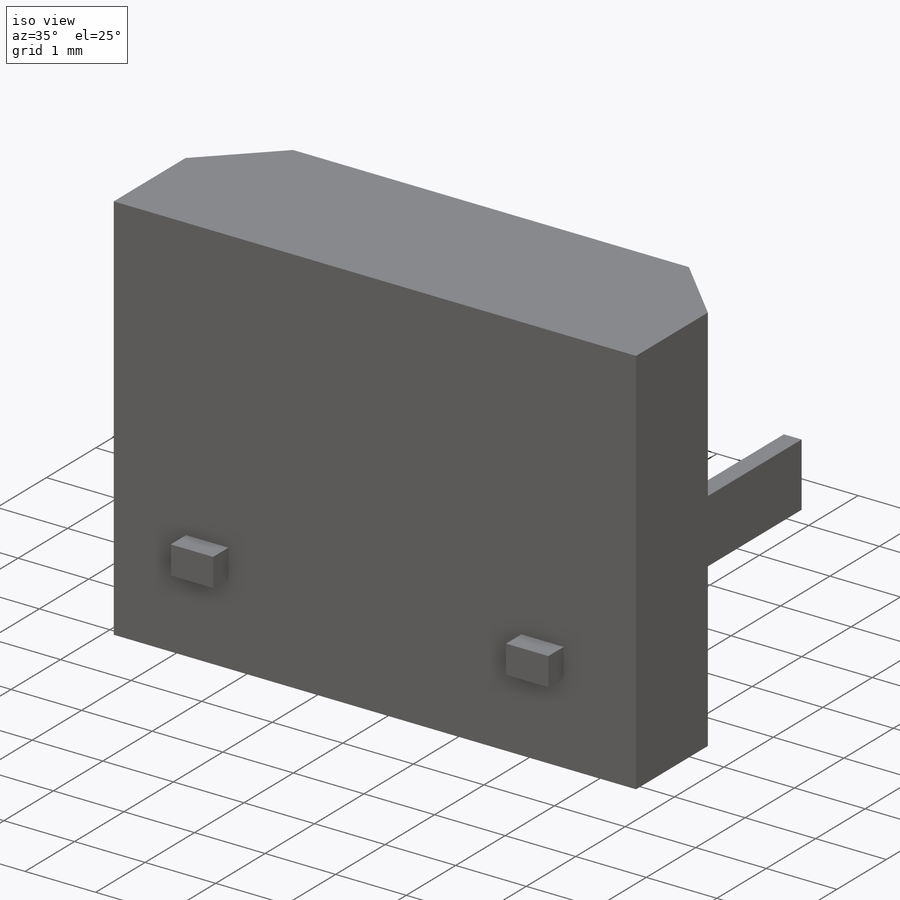
[diagram: iso view]
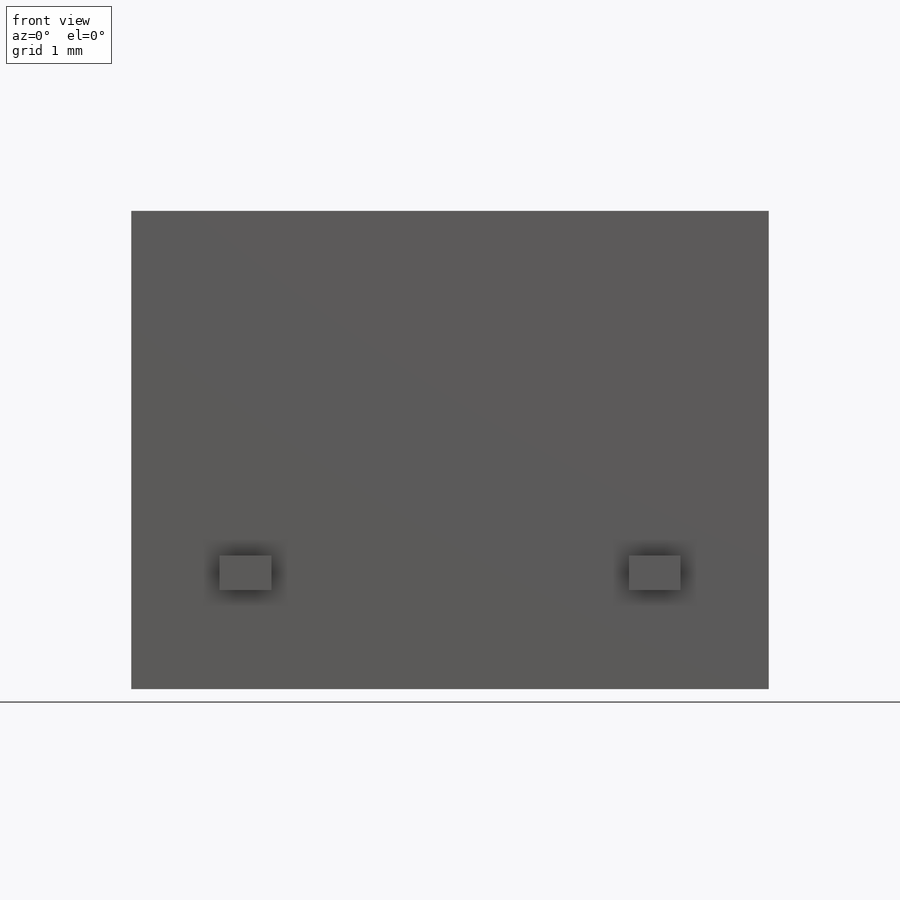
[diagram: front view]
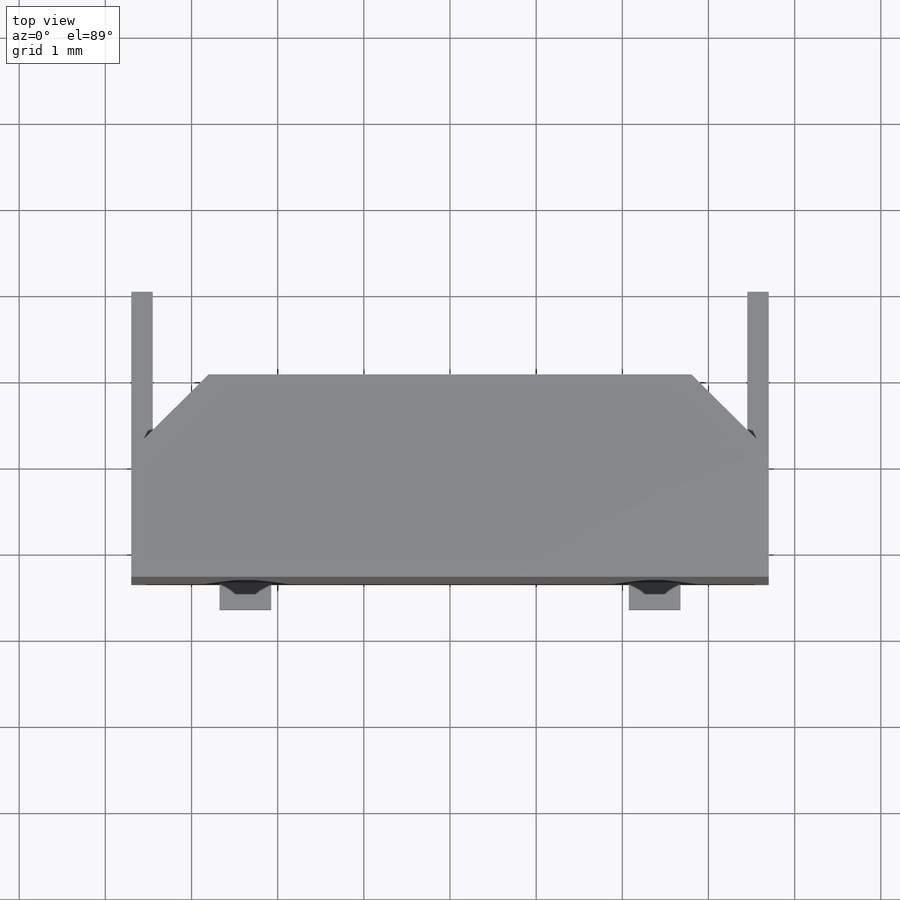
[diagram: top view]
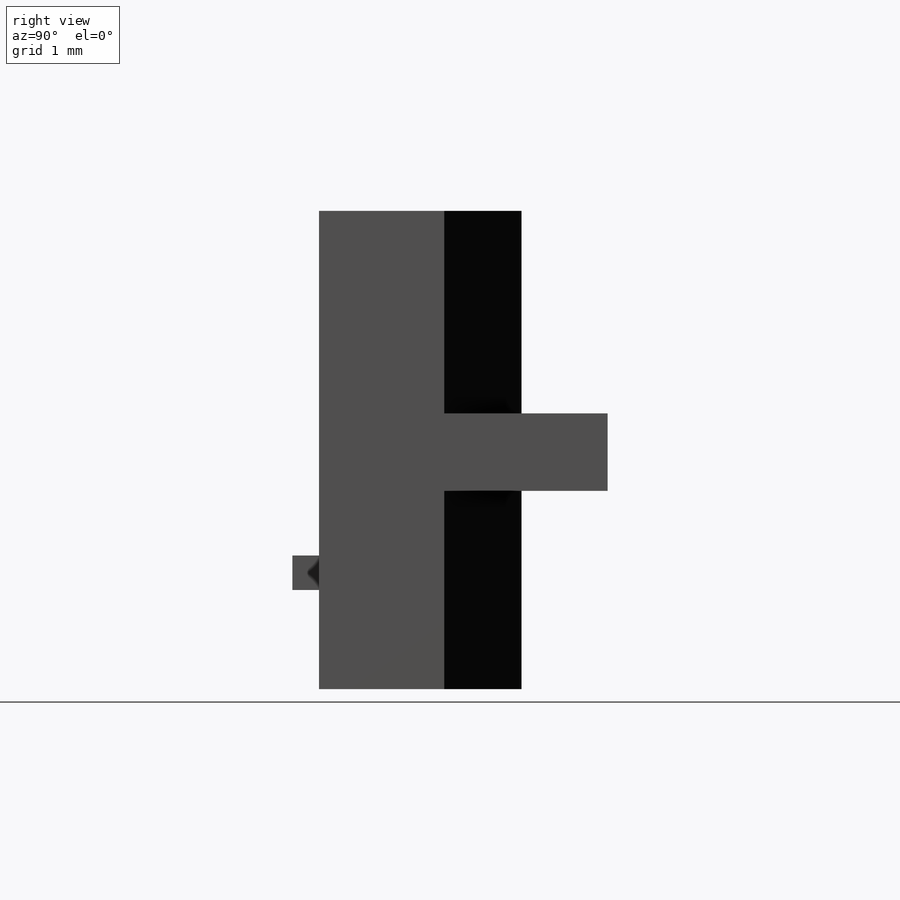
[diagram: right view]
SOLIDWORKS PART (.sldprt)
format: sldprt  version: not decoded by parser v0  size: 256,000 bytes
history: native  units: mm
features: sketch x4, extrude x3, material x1, cut_extrude x1, move_body x1 (+12 scaffold rows collapsed)
feature tree (22):
  scaffold x12  (default folders/planes/origin — collapsed)
  material  "Material <not specified>"
  sketch  "Base sketch"  dims[c1.D1=1.85mm c1.D2=6.9mm c1.D3=1.1mm c1.D4=1.1mm c1.D5=5.4mm c2.D1=1.85mm c2.D2=6.9mm c2.D4=7.4mm c2.D6=2.35mm c2.D7=0.25mm c2.D8=0.25mm c2.D9=0.25mm c2.D10=0.25mm]
  extrude  "Bulk"  Depth=2.75mm
  sketch  "Peg base sketch"  dims[D1=0.9mm D2=0.25mm]
  extrude  "Pegs"  Depth=3.35mm
  cut_extrude  "Receptacle"  [1 undecoded]
  sketch  "Base sketch<3>"  dims[D2=0.75mm]
  sketch  "Sketch3"  dims[c1.D1=1.35mm c1.D2=0.4mm c1.D3=4.75mm c1.D4=0.6mm c2.D3=2.375mm c2.D5=2.375mm]
  extrude  "Upper fins"  Depth=0.31mm
  move_body  "Altium axis align"
decode coverage: 7 of 9 modeling features carry decoded parameters
note: 1 parameter value undecoded
note: suppression state not decoded; provenance and decode notes live in map.json
